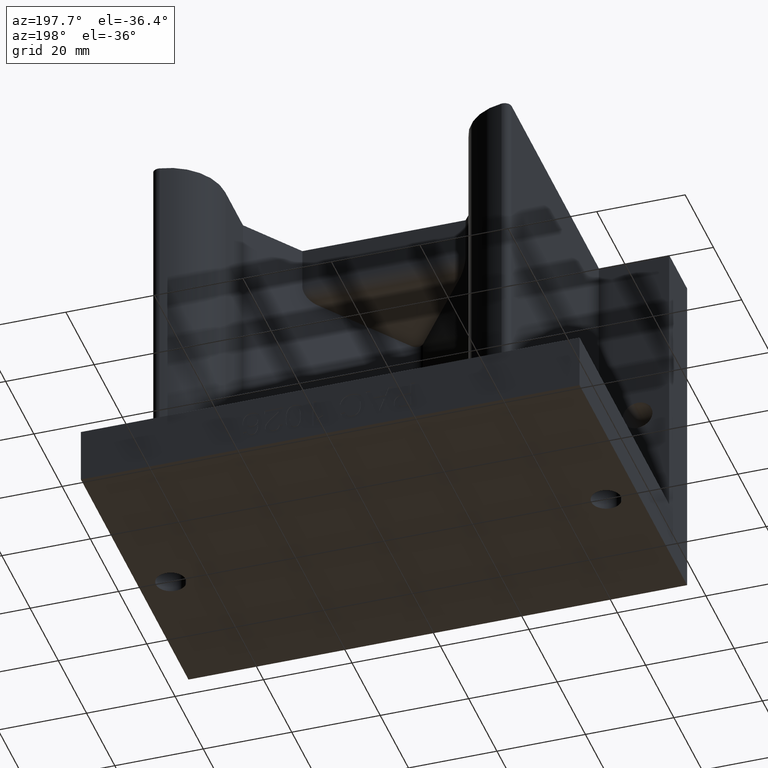
[diagram: clean part render]
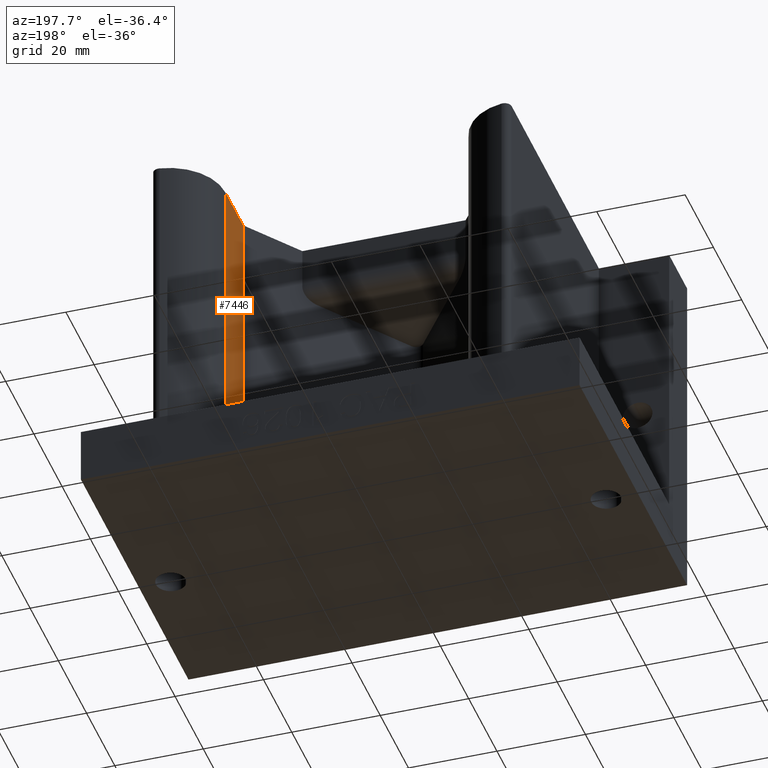
[diagram: same view with one face highlighted and labeled with its STEP entity id]
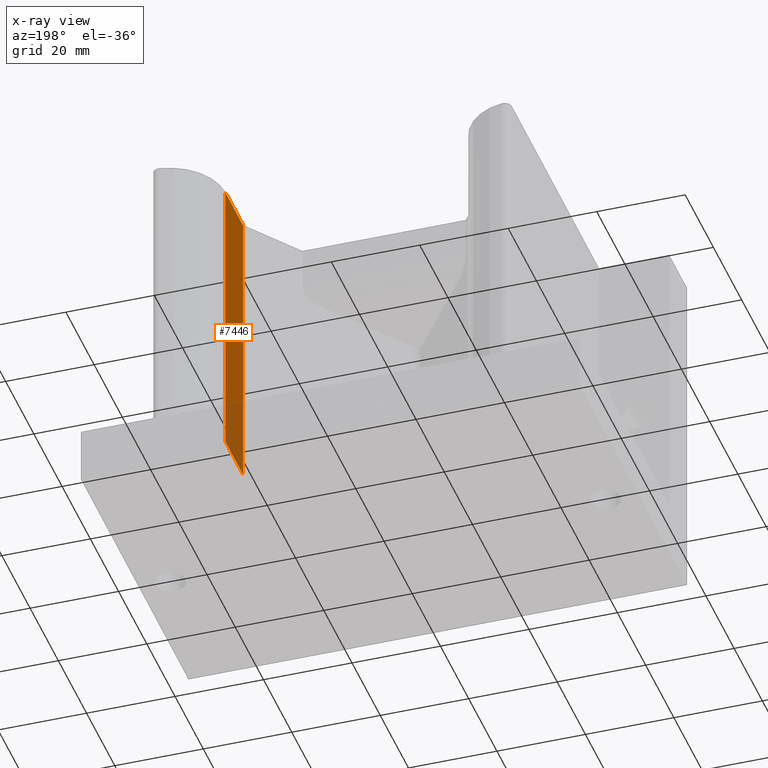
[diagram: x-ray of the same camera — body ghosted, the highlighted face saturated]
A machine part, auxiliary view. The second image highlights one B-rep face of the part: STEP entity #7446.
The next image is the same camera in x-ray: the body ghosted, the highlighted face saturated — about 21% of this face is hidden behind the body in this view.
In plain terms, the highlighted planar face has unit normal (1, 0, 0).
Its self-contained STEP definition (entity closure, byte-faithful):
#444 = DIRECTION ( 'NONE',  ( -2.746729017546385200E-016, 1.000000000000000000, -0.0000000000000000000 ) ) ;
#445 = CARTESIAN_POINT ( 'NONE',  ( 1.093750000000008400, 1.500000000000000200, 0.5000000000000001100 ) ) ;
#465 = DIRECTION ( 'NONE',  ( -0.0000000000000000000, -0.0000000000000000000, 1.000000000000000000 ) ) ;
#466 = CARTESIAN_POINT ( 'NONE',  ( 1.093750000000008900, 0.5054177255153532400, 0.5000000000000001100 ) ) ;
#493 = CARTESIAN_POINT ( 'NONE',  ( 1.093750000000008700, 1.000000000000000000, 0.5000000000000001100 ) ) ;
#1315 = VERTEX_POINT ( 'NONE', #493 ) ;
#1431 = LINE ( 'NONE', #466, #1432 ) ;
#1432 = VECTOR ( 'NONE', #465, 39.37007874015748100 ) ;
#1445 = LINE ( 'NONE', #445, #1446 ) ;
#1446 = VECTOR ( 'NONE', #444, 39.37007874015748100 ) ;
#1480 = LINE ( 'NONE', #5548, #1489 ) ;
#1489 = VECTOR ( 'NONE', #5544, 39.37007874015748100 ) ;
#3106 = EDGE_CURVE ( 'NONE', #8562, #8559, #1431, .T. ) ;
#3114 = EDGE_CURVE ( 'NONE', #8562, #1315, #1445, .T. ) ;
#3148 = EDGE_CURVE ( 'NONE', #8559, #8549, #1480, .T. ) ;
#3900 = CARTESIAN_POINT ( 'NONE',  ( 1.093750000000008700, 1.000000000000000000, 0.5000000000000001100 ) ) ;
#3901 = DIRECTION ( 'NONE',  ( -0.0000000000000000000, -0.0000000000000000000, -1.000000000000000000 ) ) ;
#3937 = CARTESIAN_POINT ( 'NONE',  ( 1.093750000000008700, 1.000000000000000000, 3.125000000000000000 ) ) ;
#3947 = CARTESIAN_POINT ( 'NONE',  ( 1.093750000000008900, 0.5054177255153532400, 3.125000000000000000 ) ) ;
#3950 = CARTESIAN_POINT ( 'NONE',  ( 1.093750000000008900, 0.5054177255153532400, 0.5000000000000001100 ) ) ;
#4059 = AXIS2_PLACEMENT_3D ( 'NONE', #6498, #6492, #6491 ) ;
#4531 = ORIENTED_EDGE ( 'NONE', *, *, #3106, .T. ) ;
#4532 = ORIENTED_EDGE ( 'NONE', *, *, #3114, .F. ) ;
#5544 = DIRECTION ( 'NONE',  ( -2.761773050308809700E-016, 1.000000000000000000, 0.0000000000000000000 ) ) ;
#5548 = CARTESIAN_POINT ( 'NONE',  ( 1.093750000000008900, 0.5054177255153532400, 3.125000000000000000 ) ) ;
#5644 = ORIENTED_EDGE ( 'NONE', *, *, #7545, .T. ) ;
#5645 = ORIENTED_EDGE ( 'NONE', *, *, #3148, .T. ) ;
#6491 = DIRECTION ( 'NONE',  ( -2.746729017546385200E-016, 1.000000000000000000, 0.0000000000000000000 ) ) ;
#6492 = DIRECTION ( 'NONE',  ( 1.000000000000000000, 2.746729017546385200E-016, 0.0000000000000000000 ) ) ;
#6495 = PLANE ( 'NONE',  #4059 ) ;
#6498 = CARTESIAN_POINT ( 'NONE',  ( 1.093750000000008400, 1.500000000000000200, 0.5000000000000001100 ) ) ;
#6549 = EDGE_LOOP ( 'NONE', ( #4531, #5645, #5644, #4532 ) ) ;
#7446 = ADVANCED_FACE ( 'NONE', ( #7564 ), #6495, .F. ) ;
#7545 = EDGE_CURVE ( 'NONE', #8549, #1315, #7680, .T. ) ;
#7564 = FACE_OUTER_BOUND ( 'NONE', #6549, .T. ) ;
#7680 = LINE ( 'NONE', #3900, #7681 ) ;
#7681 = VECTOR ( 'NONE', #3901, 39.37007874015748100 ) ;
#8549 = VERTEX_POINT ( 'NONE', #3937 ) ;
#8559 = VERTEX_POINT ( 'NONE', #3947 ) ;
#8562 = VERTEX_POINT ( 'NONE', #3950 ) ;